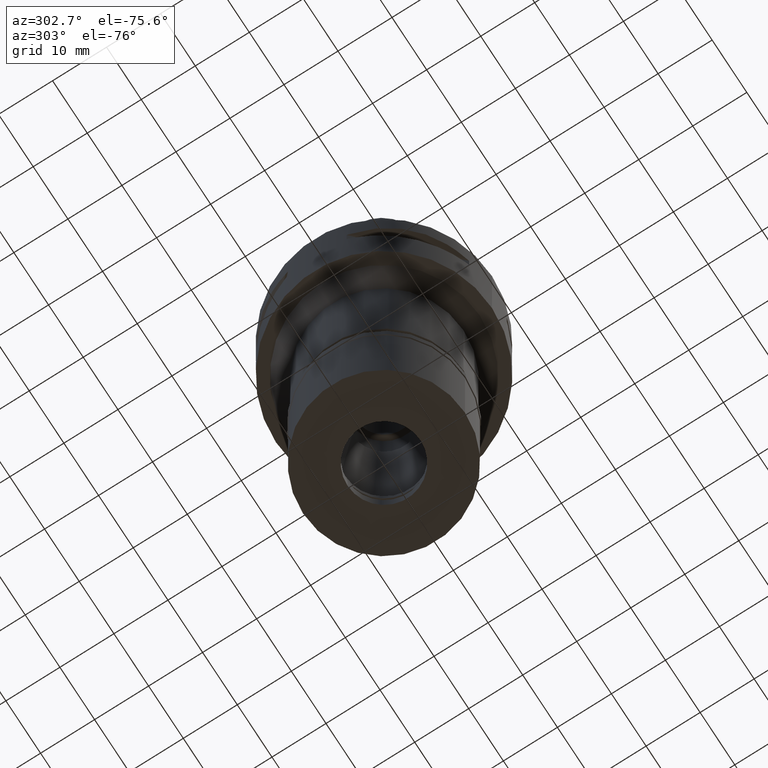
[diagram: clean part render]
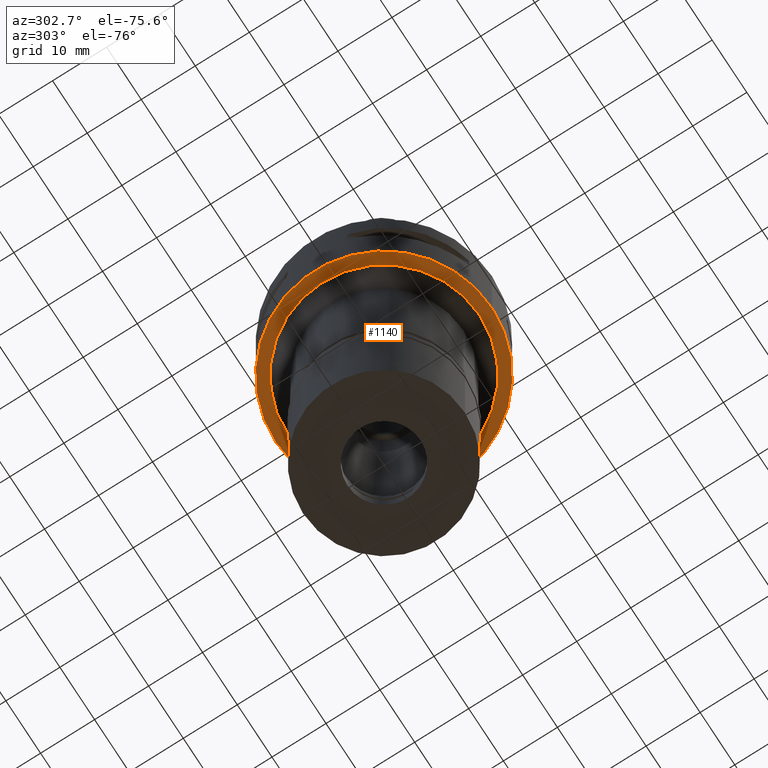
[diagram: same view with one face highlighted and labeled with its STEP entity id]
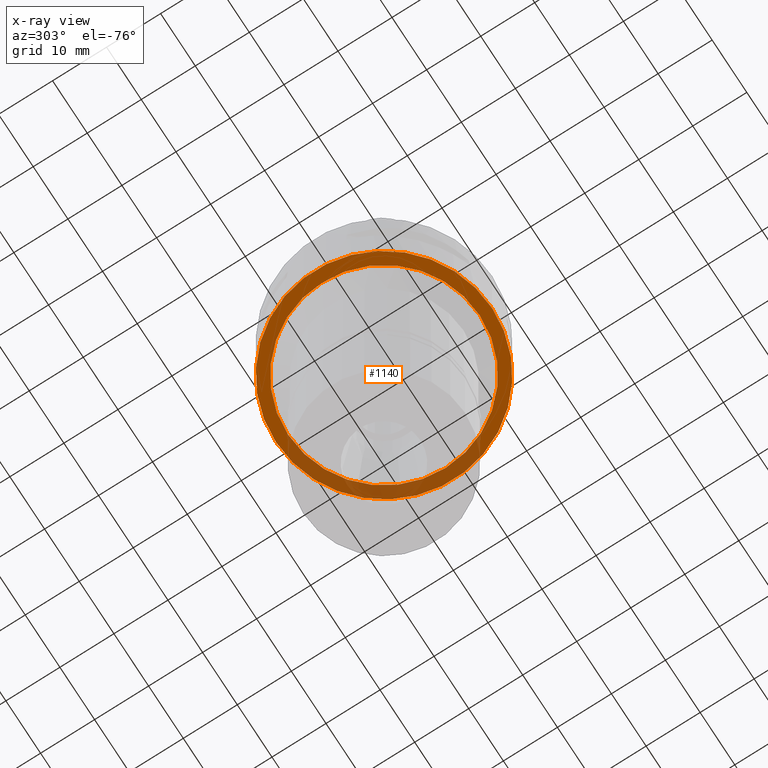
[diagram: x-ray of the same camera — body ghosted, the highlighted face saturated]
A machine part, auxiliary view. The second image highlights one B-rep face of the part: STEP entity #1140.
The next image is the same camera in x-ray: the body ghosted, the highlighted face saturated — about 29% of this face is hidden behind the body in this view.
In plain terms, the highlighted planar face has unit normal (0, 0, -1).
Its self-contained STEP definition (entity closure, byte-faithful):
#119 = EDGE_LOOP ( 'NONE', ( #1646, #474 ) ) ;
#143 = EDGE_LOOP ( 'NONE', ( #2583, #2384 ) ) ;
#147 = VERTEX_POINT ( 'NONE', #4074 ) ;
#265 = AXIS2_PLACEMENT_3D ( 'NONE', #4680, #2139, #1110 ) ;
#363 = CARTESIAN_POINT ( 'NONE',  ( 0.0000000000000000000, 0.0000000000000000000, -20.00000000000000000 ) ) ;
#400 = DIRECTION ( 'NONE',  ( 0.0000000000000000000, 1.000000000000000000, 0.0000000000000000000 ) ) ;
#458 = CARTESIAN_POINT ( 'NONE',  ( 0.0000000000000000000, 1.264447820120000125E-14, -20.00000000000000000 ) ) ;
#474 = ORIENTED_EDGE ( 'NONE', *, *, #4003, .F. ) ;
#575 = AXIS2_PLACEMENT_3D ( 'NONE', #363, #3289, #2831 ) ;
#642 = FACE_BOUND ( 'NONE', #143, .T. ) ;
#810 = DIRECTION ( 'NONE',  ( 0.0000000000000000000, 0.0000000000000000000, 1.000000000000000000 ) ) ;
#953 = CIRCLE ( 'NONE', #575, 17.75000000000000000 ) ;
#998 = DIRECTION ( 'NONE',  ( 0.0000000000000000000, -1.000000000000000000, 0.0000000000000000000 ) ) ;
#1001 = VERTEX_POINT ( 'NONE', #1409 ) ;
#1110 = DIRECTION ( 'NONE',  ( 0.0000000000000000000, -1.000000000000000000, 0.0000000000000000000 ) ) ;
#1140 = ADVANCED_FACE ( 'NONE', ( #1342, #642 ), #3908, .T. ) ;
#1142 = VERTEX_POINT ( 'NONE', #4263 ) ;
#1222 = DIRECTION ( 'NONE',  ( 0.0000000000000000000, 1.000000000000000000, 0.0000000000000000000 ) ) ;
#1342 = FACE_OUTER_BOUND ( 'NONE', #119, .T. ) ;
#1390 = CIRCLE ( 'NONE', #4677, 17.75000000000000000 ) ;
#1409 = CARTESIAN_POINT ( 'NONE',  ( 0.0000000000000000000, -17.75000000000000000, -20.00000000000000000 ) ) ;
#1479 = CARTESIAN_POINT ( 'NONE',  ( 0.0000000000000000000, 0.0000000000000000000, -20.00000000000000000 ) ) ;
#1589 = EDGE_CURVE ( 'NONE', #1142, #1001, #1390, .T. ) ;
#1646 = ORIENTED_EDGE ( 'NONE', *, *, #4479, .F. ) ;
#2139 = DIRECTION ( 'NONE',  ( 0.0000000000000000000, 0.0000000000000000000, 1.000000000000000000 ) ) ;
#2384 = ORIENTED_EDGE ( 'NONE', *, *, #4382, .F. ) ;
#2444 = AXIS2_PLACEMENT_3D ( 'NONE', #4286, #2802, #998 ) ;
#2583 = ORIENTED_EDGE ( 'NONE', *, *, #1589, .F. ) ;
#2802 = DIRECTION ( 'NONE',  ( 0.0000000000000000000, 0.0000000000000000000, -1.000000000000000000 ) ) ;
#2831 = DIRECTION ( 'NONE',  ( 0.0000000000000000000, -1.000000000000000000, 0.0000000000000000000 ) ) ;
#3289 = DIRECTION ( 'NONE',  ( 0.0000000000000000000, 0.0000000000000000000, -1.000000000000000000 ) ) ;
#3369 = VERTEX_POINT ( 'NONE', #4495 ) ;
#3908 = PLANE ( 'NONE',  #2444 ) ;
#4003 = EDGE_CURVE ( 'NONE', #147, #3369, #4550, .T. ) ;
#4074 = CARTESIAN_POINT ( 'NONE',  ( 0.0000000000000000000, -20.00000000000000000, -20.00000000000000000 ) ) ;
#4093 = DIRECTION ( 'NONE',  ( 0.0000000000000000000, 0.0000000000000000000, -1.000000000000000000 ) ) ;
#4263 = CARTESIAN_POINT ( 'NONE',  ( 0.0000000000000000000, 17.75000000000000000, -20.00000000000000000 ) ) ;
#4286 = CARTESIAN_POINT ( 'NONE',  ( 0.0000000000000000000, 0.0000000000000000000, -20.00000000000000000 ) ) ;
#4382 = EDGE_CURVE ( 'NONE', #1001, #1142, #953, .T. ) ;
#4477 = CIRCLE ( 'NONE', #4552, 20.00000000000000000 ) ;
#4479 = EDGE_CURVE ( 'NONE', #3369, #147, #4477, .T. ) ;
#4495 = CARTESIAN_POINT ( 'NONE',  ( 0.0000000000000000000, 20.00000000000000000, -20.00000000000000000 ) ) ;
#4550 = CIRCLE ( 'NONE', #265, 20.00000000000000000 ) ;
#4552 = AXIS2_PLACEMENT_3D ( 'NONE', #458, #810, #1222 ) ;
#4677 = AXIS2_PLACEMENT_3D ( 'NONE', #1479, #4093, #400 ) ;
#4680 = CARTESIAN_POINT ( 'NONE',  ( 0.0000000000000000000, 1.264447820120000125E-14, -20.00000000000000000 ) ) ;